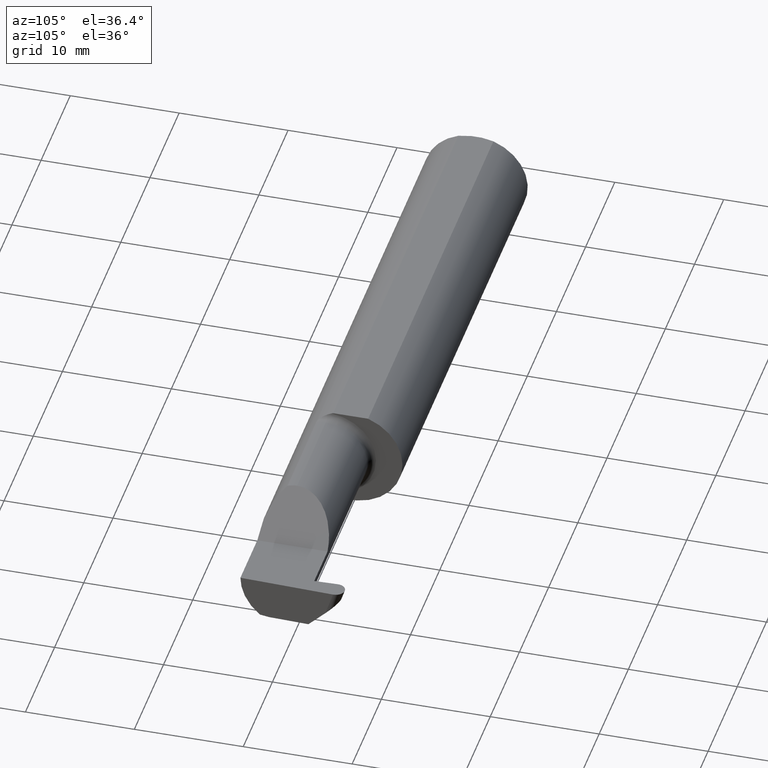
[diagram: clean part render]
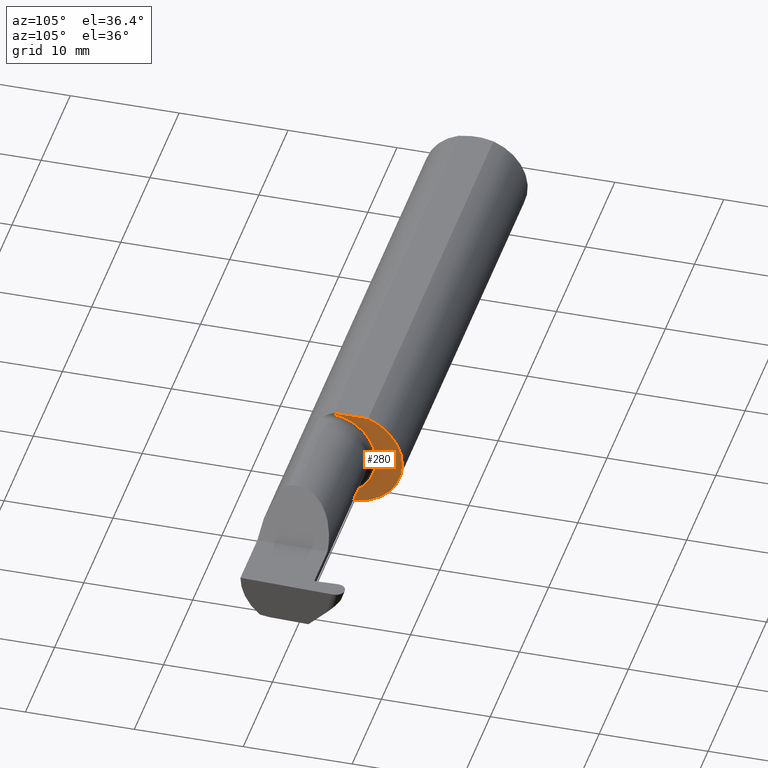
[diagram: same view with one face highlighted and labeled with its STEP entity id]
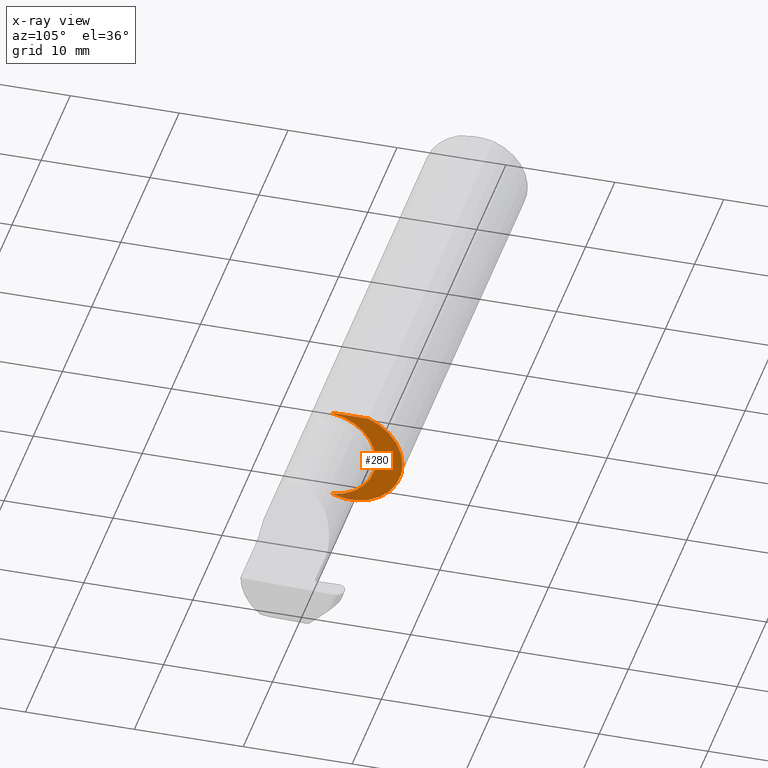
[diagram: x-ray of the same camera — body ghosted, the highlighted face saturated]
A machine part, auxiliary view. The second image highlights one B-rep face of the part: STEP entity #280.
The next image is the same camera in x-ray: the body ghosted, the highlighted face saturated — about 4% of this face is hidden behind the body in this view.
In plain terms, the highlighted planar face has unit normal (1, 0, 0).
Its self-contained STEP definition (entity closure, byte-faithful):
#6 = VERTEX_POINT ( 'NONE', #573 ) ;
#21 = ORIENTED_EDGE ( 'NONE', *, *, #389, .T. ) ;
#38 = AXIS2_PLACEMENT_3D ( 'NONE', #786, #610, #238 ) ;
#50 = CIRCLE ( 'NONE', #595, 0.1873499999999999888 ) ;
#68 = CARTESIAN_POINT ( 'NONE',  ( 1.699999999999999956, -0.06325108694718287183, 0.1763499999999999235 ) ) ;
#107 = DIRECTION ( 'NONE',  ( 0.000000000000000000, 0.000000000000000000, -1.000000000000000000 ) ) ;
#139 = DIRECTION ( 'NONE',  ( 0.000000000000000000, 0.000000000000000000, -1.000000000000000000 ) ) ;
#149 = CARTESIAN_POINT ( 'NONE',  ( 1.699999999999999956, 0.1873499999999998500, 0.1763499999999999235 ) ) ;
#175 = DIRECTION ( 'NONE',  ( 1.000000000000000000, 0.000000000000000000, 0.000000000000000000 ) ) ;
#179 = ORIENTED_EDGE ( 'NONE', *, *, #748, .T. ) ;
#238 = DIRECTION ( 'NONE',  ( 0.000000000000000000, 0.000000000000000000, 1.000000000000000000 ) ) ;
#240 = FACE_OUTER_BOUND ( 'NONE', #277, .T. ) ;
#271 = LINE ( 'NONE', #149, #647 ) ;
#273 = AXIS2_PLACEMENT_3D ( 'NONE', #381, #318, #139 ) ;
#275 = DIRECTION ( 'NONE',  ( 0.000000000000000000, 1.000000000000000000, 0.000000000000000000 ) ) ;
#277 = EDGE_LOOP ( 'NONE', ( #21, #787, #398, #179 ) ) ;
#280 = ADVANCED_FACE ( 'NONE', ( #240 ), #545, .T. ) ;
#318 = DIRECTION ( 'NONE',  ( 1.000000000000000000, 0.000000000000000000, 0.000000000000000000 ) ) ;
#330 = EDGE_CURVE ( 'NONE', #452, #6, #50, .T. ) ;
#346 = CARTESIAN_POINT ( 'NONE',  ( 1.699999999999999956, -0.06851976604679071992, -0.1743704796142198366 ) ) ;
#372 = DIRECTION ( 'NONE',  ( 1.000000000000000000, 0.000000000000000000, 0.000000000000000000 ) ) ;
#381 = CARTESIAN_POINT ( 'NONE',  ( 1.699999999999999956, 0.000000000000000000, 0.000000000000000000 ) ) ;
#389 = EDGE_CURVE ( 'NONE', #540, #585, #626, .T. ) ;
#398 = ORIENTED_EDGE ( 'NONE', *, *, #330, .T. ) ;
#452 = VERTEX_POINT ( 'NONE', #68 ) ;
#507 = CARTESIAN_POINT ( 'NONE',  ( 1.699999999999999956, 0.06325108694718235836, 0.1763499999999999235 ) ) ;
#527 = CIRCLE ( 'NONE', #38, 0.1749999999999999334 ) ;
#533 = EDGE_CURVE ( 'NONE', #452, #585, #271, .T. ) ;
#540 = VERTEX_POINT ( 'NONE', #346 ) ;
#545 = PLANE ( 'NONE',  #637 ) ;
#573 = CARTESIAN_POINT ( 'NONE',  ( 1.699999999999999956, -0.06851976604679071992, 0.1743704796142198366 ) ) ;
#585 = VERTEX_POINT ( 'NONE', #507 ) ;
#595 = AXIS2_PLACEMENT_3D ( 'NONE', #657, #372, #107 ) ;
#610 = DIRECTION ( 'NONE',  ( -1.000000000000000000, -0.000000000000000000, -0.000000000000000000 ) ) ;
#618 = CARTESIAN_POINT ( 'NONE',  ( 1.699999999999999956, 0.1873499999999999055, 0.000000000000000000 ) ) ;
#626 = CIRCLE ( 'NONE', #273, 0.1873499999999999888 ) ;
#637 = AXIS2_PLACEMENT_3D ( 'NONE', #618, #175, #676 ) ;
#647 = VECTOR ( 'NONE', #275, 39.37007874015748143 ) ;
#657 = CARTESIAN_POINT ( 'NONE',  ( 1.699999999999999956, 0.000000000000000000, 0.000000000000000000 ) ) ;
#676 = DIRECTION ( 'NONE',  ( 0.000000000000000000, 0.000000000000000000, -1.000000000000000000 ) ) ;
#748 = EDGE_CURVE ( 'NONE', #6, #540, #527, .T. ) ;
#786 = CARTESIAN_POINT ( 'NONE',  ( 1.699999999999999956, -0.08334999999999999354, 0.000000000000000000 ) ) ;
#787 = ORIENTED_EDGE ( 'NONE', *, *, #533, .F. ) ;